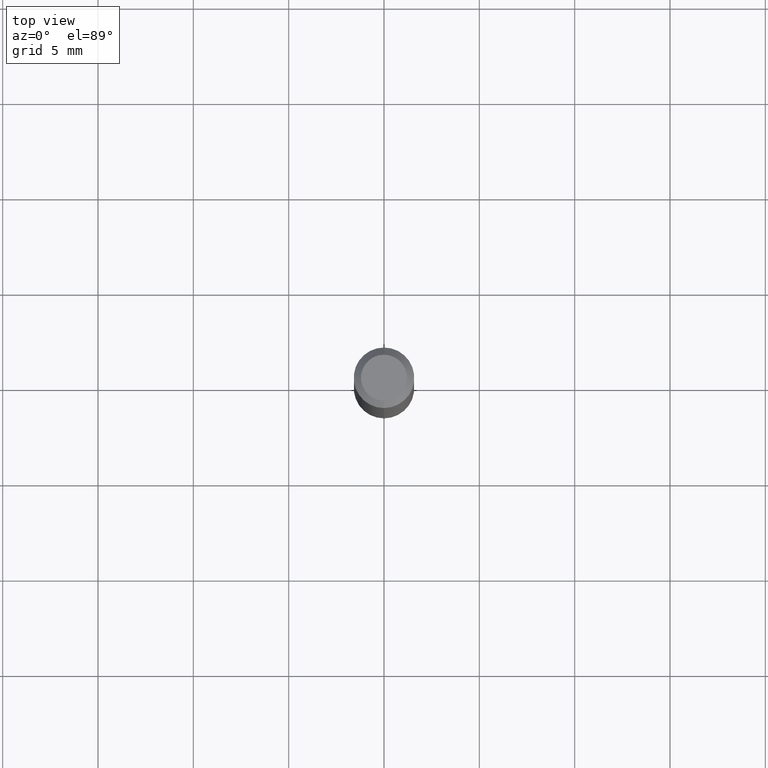
[diagram: clean part render]
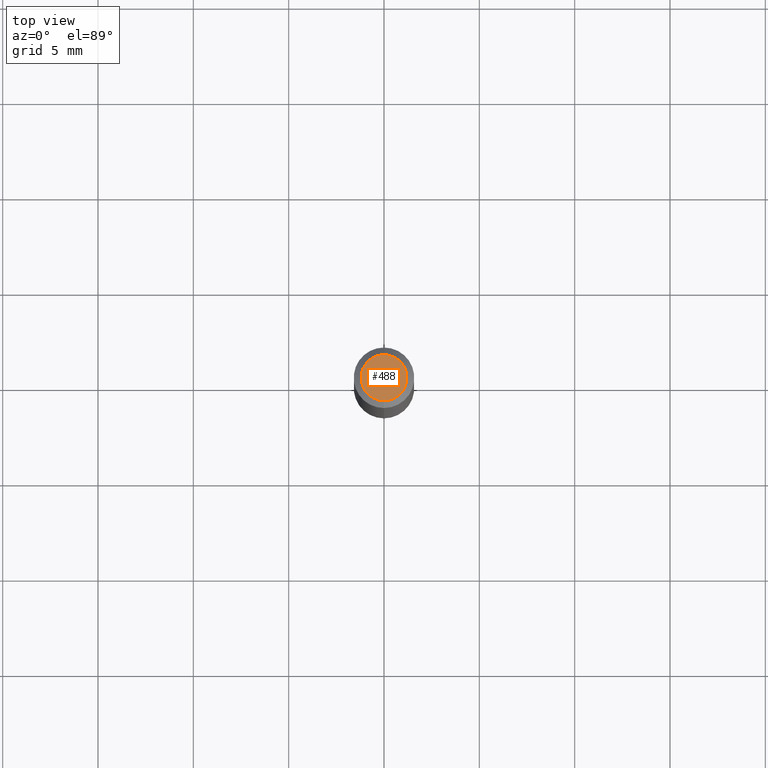
[diagram: same view with one face highlighted and labeled with its STEP entity id]
A machine part, top view. The second image highlights one B-rep face of the part: STEP entity #488.
In plain terms, the highlighted planar face has unit normal (0, -0, -1).
Its self-contained STEP definition (entity closure, byte-faithful):
#36 = VERTEX_POINT ( 'NONE', #89 ) ;
#37 = EDGE_CURVE ( 'NONE', #56, #36, #496, .T. ) ;
#44 = ORIENTED_EDGE ( 'NONE', *, *, #270, .T. ) ;
#55 = DIRECTION ( 'NONE',  ( -6.982962677686265133E-15, -1.000000000000000000, 3.491643784466155918E-15 ) ) ;
#56 = VERTEX_POINT ( 'NONE', #358 ) ;
#89 = CARTESIAN_POINT ( 'NONE',  ( 3.840629472727450339E-16, 0.04750000000000004219, -9.492000972570193079E-16 ) ) ;
#113 = DIRECTION ( 'NONE',  ( 2.445355371012872525E-29, -3.491643784466156312E-15, -1.000000000000000000 ) ) ;
#133 = AXIS2_PLACEMENT_3D ( 'NONE', #401, #328, #55 ) ;
#172 = AXIS2_PLACEMENT_3D ( 'NONE', #345, #113, #504 ) ;
#228 = FACE_OUTER_BOUND ( 'NONE', #386, .T. ) ;
#270 = EDGE_CURVE ( 'NONE', #36, #56, #463, .T. ) ;
#298 = DIRECTION ( 'NONE',  ( -6.982962677686265133E-15, -1.000000000000000000, 3.491643784466155918E-15 ) ) ;
#328 = DIRECTION ( 'NONE',  ( -2.445355371012872805E-29, 3.491643784466156312E-15, 1.000000000000000000 ) ) ;
#345 = CARTESIAN_POINT ( 'NONE',  ( 3.316907271900979054E-16, 0.04750000000000004219, -5.575265885095808659E-16 ) ) ;
#358 = CARTESIAN_POINT ( 'NONE',  ( -3.773273898774342241E-16, -0.04750000000000004219, -6.174939377327341644E-16 ) ) ;
#386 = EDGE_LOOP ( 'NONE', ( #44, #481 ) ) ;
#401 = CARTESIAN_POINT ( 'NONE',  ( 1.915561836598011437E-44, -2.735168744716087513E-30, -7.833470174948766869E-16 ) ) ;
#416 = AXIS2_PLACEMENT_3D ( 'NONE', #471, #423, #298 ) ;
#423 = DIRECTION ( 'NONE',  ( -2.445355371012872805E-29, 3.491643784466156312E-15, 1.000000000000000000 ) ) ;
#463 = CIRCLE ( 'NONE', #416, 0.04750000000000004219 ) ;
#471 = CARTESIAN_POINT ( 'NONE',  ( 1.915561836598011437E-44, -2.735168744716087513E-30, -7.833470174948766869E-16 ) ) ;
#473 = PLANE ( 'NONE',  #172 ) ;
#481 = ORIENTED_EDGE ( 'NONE', *, *, #37, .T. ) ;
#488 = ADVANCED_FACE ( 'NONE', ( #228 ), #473, .F. ) ;
#496 = CIRCLE ( 'NONE', #133, 0.04750000000000004219 ) ;
#504 = DIRECTION ( 'NONE',  ( 6.982962677686265922E-15, 1.000000000000000000, -3.491643784466156312E-15 ) ) ;